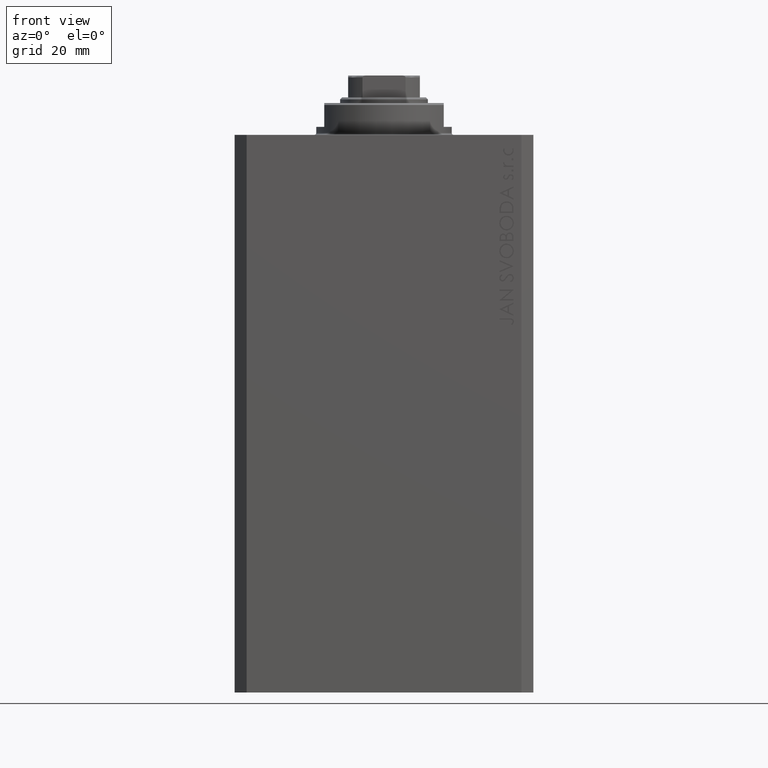
[diagram: clean part render]
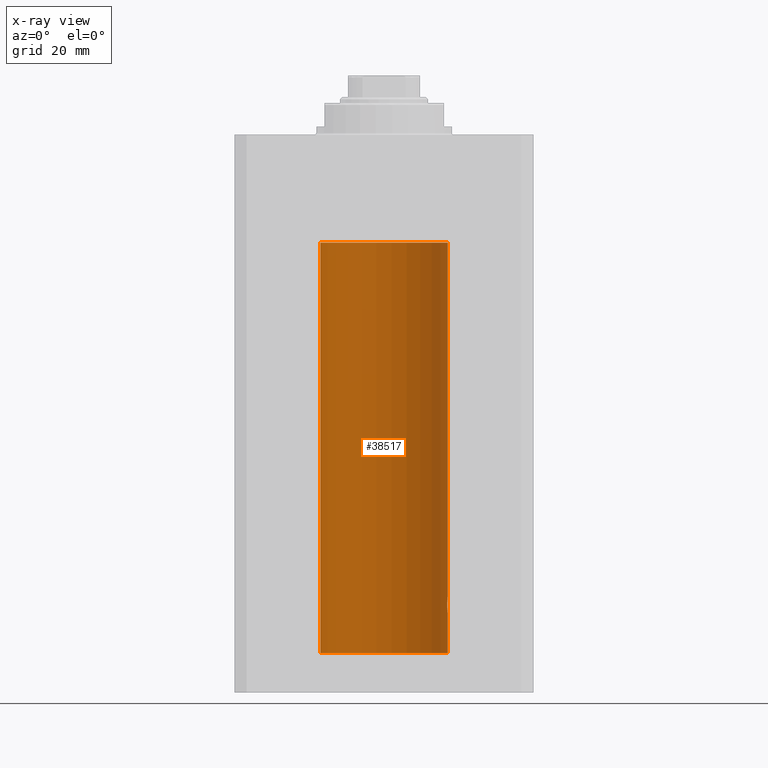
[diagram: x-ray — body ghosted, one internal face saturated and labeled with its STEP entity id]
A machine part, front view, then the same camera in x-ray: the body is ghosted and one INTERNAL B-rep face — a face not visible from any outside direction — is saturated and labeled: STEP entity #38517.
In plain terms, the highlighted cylindrical surface (partial cylindrical patch) has radius 16 mm, axis along (0, 0, 1).
Its self-contained STEP definition (entity closure, byte-faithful):
#692 = CARTESIAN_POINT ( 'NONE',  ( 15.88135773388169092, 1.947448446433282854, -118.5247245543324794 ) ) ;
#959 = AXIS2_PLACEMENT_3D ( 'NONE', #22782, #15382, #4407 ) ;
#1103 = EDGE_CURVE ( 'NONE', #12258, #43506, #1369, .T. ) ;
#1369 = B_SPLINE_CURVE_WITH_KNOTS ( 'NONE', 3,
 ( #44630, #34109, #37223, #22630, #4500, #33640, #19053, #45099, #30523, #15240, #12361, #692, #26926, #7847 ),
 .UNSPECIFIED., .F., .F.,
 ( 4, 2, 2, 2, 2, 2, 4 ),
 ( 3.424160547694500162E-18, 0.0003912813346923356916, 0.0007825626693846680221, 0.001173844004077000082, 0.001565125338769331924, 0.002347688008154024883, 0.003130250677538718058 ),
 .UNSPECIFIED. ) ;
#1860 = AXIS2_PLACEMENT_3D ( 'NONE', #34350, #44404, #26478 ) ;
#2277 = CARTESIAN_POINT ( 'NONE',  ( 15.98747899434752817, 0.6443623600228916004, -116.1021155051082729 ) ) ;
#2279 = CIRCLE ( 'NONE', #44256, 16.00000000000000000 ) ;
#3460 = ORIENTED_EDGE ( 'NONE', *, *, #11134, .T. ) ;
#4407 = DIRECTION ( 'NONE',  ( 1.000000000000000000, 0.000000000000000000, 0.000000000000000000 ) ) ;
#4500 = CARTESIAN_POINT ( 'NONE',  ( 15.98743782203464825, 0.6453927552190293904, -119.8975403585268396 ) ) ;
#5153 = CARTESIAN_POINT ( 'NONE',  ( 15.87617168140110380, 1.986916736633999037, -117.7368093443493962 ) ) ;
#5857 = CARTESIAN_POINT ( 'NONE',  ( 15.89878974374255449, 1.797508500259969777, -117.1133488878856781 ) ) ;
#5893 = DIRECTION ( 'NONE',  ( 0.000000000000000000, 0.000000000000000000, 1.000000000000000000 ) ) ;
#6796 = CARTESIAN_POINT ( 'NONE',  ( 16.00000000000000000, 0.000000000000000000, -130.0999999999999943 ) ) ;
#6875 = VERTEX_POINT ( 'NONE', #6796 ) ;
#7847 = CARTESIAN_POINT ( 'NONE',  ( 15.87450786638750699, 2.000000000000297096, -118.0000000000000284 ) ) ;
#8439 = ORIENTED_EDGE ( 'NONE', *, *, #28229, .F. ) ;
#8974 = CARTESIAN_POINT ( 'NONE',  ( 15.87450786638750699, 2.000000000000297096, -118.0000000000000284 ) ) ;
#9079 = EDGE_CURVE ( 'NONE', #6875, #12258, #40780, .T. ) ;
#10202 = CARTESIAN_POINT ( 'NONE',  ( -16.00000000000000000, 1.959434878635765131E-15, -27.10000000000000142 ) ) ;
#11030 = EDGE_CURVE ( 'NONE', #43506, #25593, #14127, .T. ) ;
#11134 = EDGE_CURVE ( 'NONE', #25593, #20238, #32825, .T. ) ;
#11787 = DIRECTION ( 'NONE',  ( -0.000000000000000000, -0.000000000000000000, 1.000000000000000000 ) ) ;
#12258 = VERTEX_POINT ( 'NONE', #42589 ) ;
#12361 = CARTESIAN_POINT ( 'NONE',  ( 15.90454527605181667, 1.748004143318092174, -119.0061673938155309 ) ) ;
#12542 = CARTESIAN_POINT ( 'NONE',  ( 15.92911104305801828, 1.507378839264603476, -116.6789366429541701 ) ) ;
#12608 = ORIENTED_EDGE ( 'NONE', *, *, #1103, .T. ) ;
#13239 = CARTESIAN_POINT ( 'NONE',  ( 15.95379436193629985, 1.219925354616377966, -116.4098000984431849 ) ) ;
#14127 = B_SPLINE_CURVE_WITH_KNOTS ( 'NONE', 3,
 ( #8974, #20410, #5153, #23056, #34295, #5857, #19714, #34519, #12542, #16128, #13239, #34994, #20175, #2277, #38101, #16826, #41231, #34061 ),
 .UNSPECIFIED., .F., .F.,
 ( 4, 2, 2, 2, 2, 2, 2, 2, 4 ),
 ( 0.003130250677538718058, 0.003521348247420690372, 0.003912445817302662686, 0.004303543387184635000, 0.004694640957066607313, 0.005085738526948579627, 0.005476836096830552808, 0.005867933666712525122, 0.006259031236594497435 ),
 .UNSPECIFIED. ) ;
#15240 = CARTESIAN_POINT ( 'NONE',  ( 15.92096875784782739, 1.599058044721133331, -119.2292259384397113 ) ) ;
#15382 = DIRECTION ( 'NONE',  ( 0.000000000000000000, 0.000000000000000000, 1.000000000000000000 ) ) ;
#15398 = ORIENTED_EDGE ( 'NONE', *, *, #19159, .F. ) ;
#15451 = CARTESIAN_POINT ( 'NONE',  ( 16.00000000000000000, 0.000000000000000000, -130.0999999999999943 ) ) ;
#15846 = CARTESIAN_POINT ( 'NONE',  ( 16.00000000000000000, -2.738688404655786685E-23, -116.0000000000000142 ) ) ;
#16128 = CARTESIAN_POINT ( 'NONE',  ( 15.94566414814287469, 1.320819617421907788, -116.4924075827249226 ) ) ;
#16826 = CARTESIAN_POINT ( 'NONE',  ( 15.99834953062734222, 0.2631943783489354982, -116.0130845296388316 ) ) ;
#16832 = ORIENTED_EDGE ( 'NONE', *, *, #11030, .T. ) ;
#18260 = EDGE_LOOP ( 'NONE', ( #15398, #8439, #33825, #12608, #16832, #3460, #29257 ) ) ;
#18486 = VERTEX_POINT ( 'NONE', #10202 ) ;
#19053 = CARTESIAN_POINT ( 'NONE',  ( 15.96893716441426214, 1.002454028984434808, -119.7355604244121707 ) ) ;
#19116 = VECTOR ( 'NONE', #35599, 1000.000000000000000 ) ;
#19159 = EDGE_CURVE ( 'NONE', #27809, #18486, #39649, .T. ) ;
#19714 = CARTESIAN_POINT ( 'NONE',  ( 15.90582997788426312, 1.734897462761020082, -116.9964633285505187 ) ) ;
#19974 = DIRECTION ( 'NONE',  ( 1.000000000000000000, 0.000000000000000000, 0.000000000000000000 ) ) ;
#20175 = CARTESIAN_POINT ( 'NONE',  ( 15.97588373855009536, 0.8864683965309503311, -116.2024065562767561 ) ) ;
#20238 = VERTEX_POINT ( 'NONE', #42229 ) ;
#20410 = CARTESIAN_POINT ( 'NONE',  ( 15.87450786638751055, 2.000000000000297984, -117.8694386949729704 ) ) ;
#20954 = CARTESIAN_POINT ( 'NONE',  ( -16.00000000000000000, 1.959434878635765131E-15, -130.0999999999999943 ) ) ;
#22226 = EDGE_CURVE ( 'NONE', #20238, #18486, #2279, .T. ) ;
#22630 = CARTESIAN_POINT ( 'NONE',  ( 15.99211620657850474, 0.5182628822511399225, -119.9360834489417442 ) ) ;
#22782 = CARTESIAN_POINT ( 'NONE',  ( 0.000000000000000000, 0.000000000000000000, -130.0999999999999943 ) ) ;
#22847 = DIRECTION ( 'NONE',  ( -0.000000000000000000, -0.000000000000000000, 1.000000000000000000 ) ) ;
#23056 = CARTESIAN_POINT ( 'NONE',  ( 15.88249567060696243, 1.935716055827872539, -117.4802781602162156 ) ) ;
#25593 = VERTEX_POINT ( 'NONE', #15846 ) ;
#26478 = DIRECTION ( 'NONE',  ( 1.000000000000000000, 0.000000000000000000, 0.000000000000000000 ) ) ;
#26926 = CARTESIAN_POINT ( 'NONE',  ( 15.87450786638751410, 2.000000000000297096, -118.2612453035981872 ) ) ;
#27174 = CYLINDRICAL_SURFACE ( 'NONE', #1860, 16.00000000000000000 ) ;
#27809 = VERTEX_POINT ( 'NONE', #20954 ) ;
#28229 = EDGE_CURVE ( 'NONE', #6875, #27809, #32215, .T. ) ;
#29257 = ORIENTED_EDGE ( 'NONE', *, *, #22226, .T. ) ;
#30523 = CARTESIAN_POINT ( 'NONE',  ( 15.94550883254178331, 1.322613426523511881, -119.5058849502901666 ) ) ;
#32215 = CIRCLE ( 'NONE', #959, 16.00000000000000000 ) ;
#32825 = LINE ( 'NONE', #33524, #46283 ) ;
#33524 = CARTESIAN_POINT ( 'NONE',  ( 16.00000000000000000, 0.000000000000000000, -130.0999999999999943 ) ) ;
#33640 = CARTESIAN_POINT ( 'NONE',  ( 15.97582125337101999, 0.8876008124445644576, -119.7970409061775143 ) ) ;
#33825 = ORIENTED_EDGE ( 'NONE', *, *, #9079, .T. ) ;
#34061 = CARTESIAN_POINT ( 'NONE',  ( 16.00000000000000000, -2.738688404655786685E-23, -116.0000000000000142 ) ) ;
#34109 = CARTESIAN_POINT ( 'NONE',  ( 15.99999999999999645, 0.1323149458028788361, -120.0000000000000426 ) ) ;
#34295 = CARTESIAN_POINT ( 'NONE',  ( 15.88712192135845491, 1.897869642555071179, -117.3555794672821264 ) ) ;
#34350 = CARTESIAN_POINT ( 'NONE',  ( 0.000000000000000000, 0.000000000000000000, -130.0999999999999943 ) ) ;
#34519 = CARTESIAN_POINT ( 'NONE',  ( 15.92095407913750726, 1.590131347295332009, -116.7799846904292167 ) ) ;
#34994 = CARTESIAN_POINT ( 'NONE',  ( 15.96887171920781689, 1.003448269354837441, -116.2650518254207412 ) ) ;
#35599 = DIRECTION ( 'NONE',  ( -0.000000000000000000, -0.000000000000000000, 1.000000000000000000 ) ) ;
#37223 = CARTESIAN_POINT ( 'NONE',  ( 15.99836014839681830, 0.2623923436743452187, -119.9869991933481828 ) ) ;
#37349 = VECTOR ( 'NONE', #22847, 1000.000000000000000 ) ;
#37606 = CARTESIAN_POINT ( 'NONE',  ( 15.87450786638750699, 2.000000000000297096, -118.0000000000000284 ) ) ;
#38101 = CARTESIAN_POINT ( 'NONE',  ( 15.99207203775707065, 0.5197027266689088210, -116.0642796061806337 ) ) ;
#38517 = ADVANCED_FACE ( 'NONE', ( #41051 ), #27174, .F. ) ;
#38612 = CARTESIAN_POINT ( 'NONE',  ( 0.000000000000000000, 0.000000000000000000, -27.10000000000000142 ) ) ;
#39414 = CARTESIAN_POINT ( 'NONE',  ( -16.00000000000000000, 1.959434878635765131E-15, -130.0999999999999943 ) ) ;
#39649 = LINE ( 'NONE', #39414, #19116 ) ;
#40780 = LINE ( 'NONE', #15451, #37349 ) ;
#41051 = FACE_OUTER_BOUND ( 'NONE', #18260, .T. ) ;
#41231 = CARTESIAN_POINT ( 'NONE',  ( 16.00000000000000000, 0.1305637488590863926, -116.0000000000000000 ) ) ;
#42229 = CARTESIAN_POINT ( 'NONE',  ( 16.00000000000000000, 0.000000000000000000, -27.10000000000000142 ) ) ;
#42589 = CARTESIAN_POINT ( 'NONE',  ( 16.00000000000000000, 3.524002214059393877E-15, -120.0000000000000284 ) ) ;
#43506 = VERTEX_POINT ( 'NONE', #37606 ) ;
#44256 = AXIS2_PLACEMENT_3D ( 'NONE', #38612, #5893, #19974 ) ;
#44404 = DIRECTION ( 'NONE',  ( -0.000000000000000000, -0.000000000000000000, 1.000000000000000000 ) ) ;
#44630 = CARTESIAN_POINT ( 'NONE',  ( 16.00000000000000000, 3.524002214059393877E-15, -120.0000000000000284 ) ) ;
#45099 = CARTESIAN_POINT ( 'NONE',  ( 15.95380611548778660, 1.219810915946573759, -119.5903287070132706 ) ) ;
#46283 = VECTOR ( 'NONE', #11787, 1000.000000000000000 ) ;